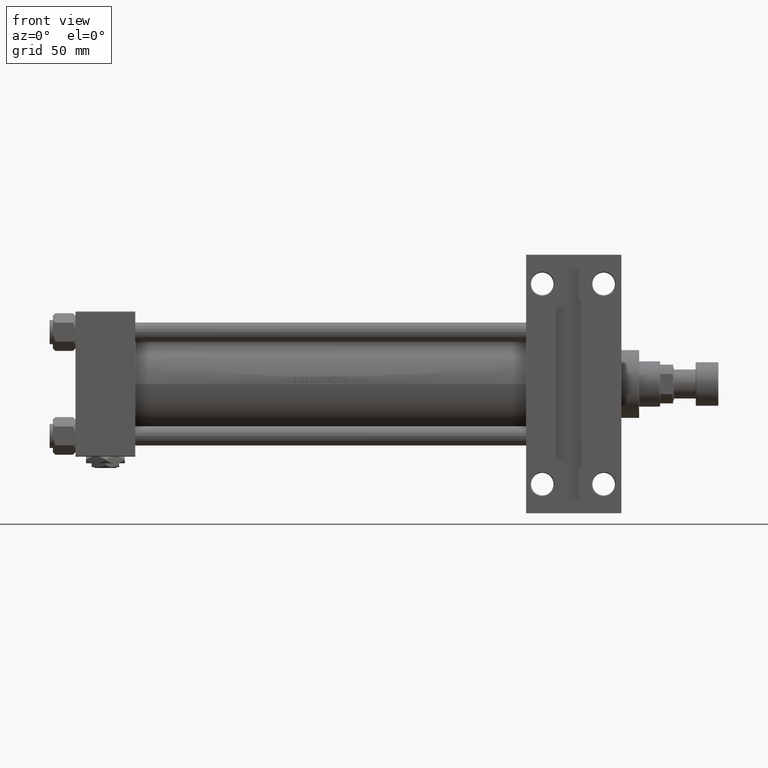
[diagram: clean part render]
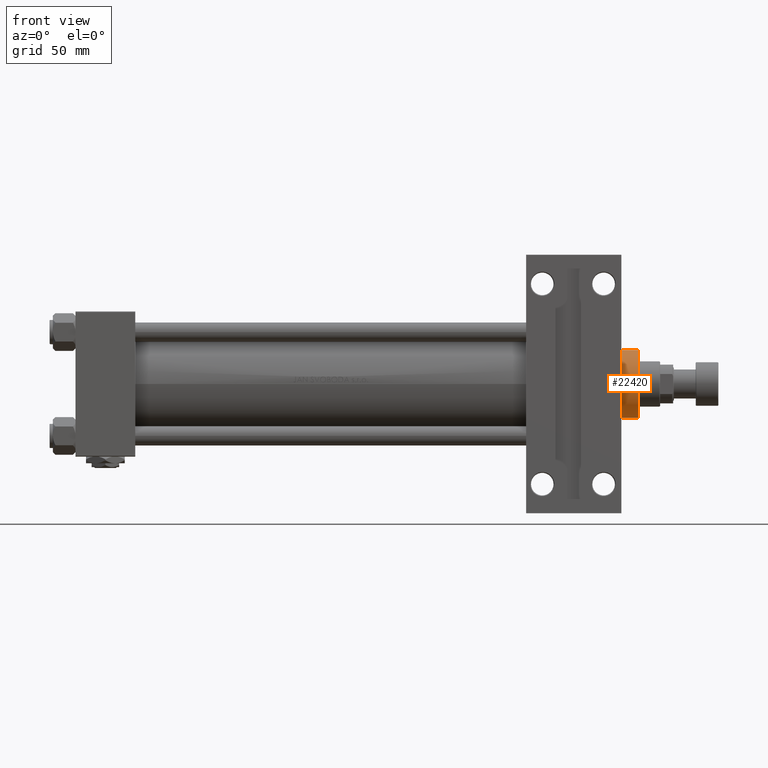
[diagram: same view with one face highlighted and labeled with its STEP entity id]
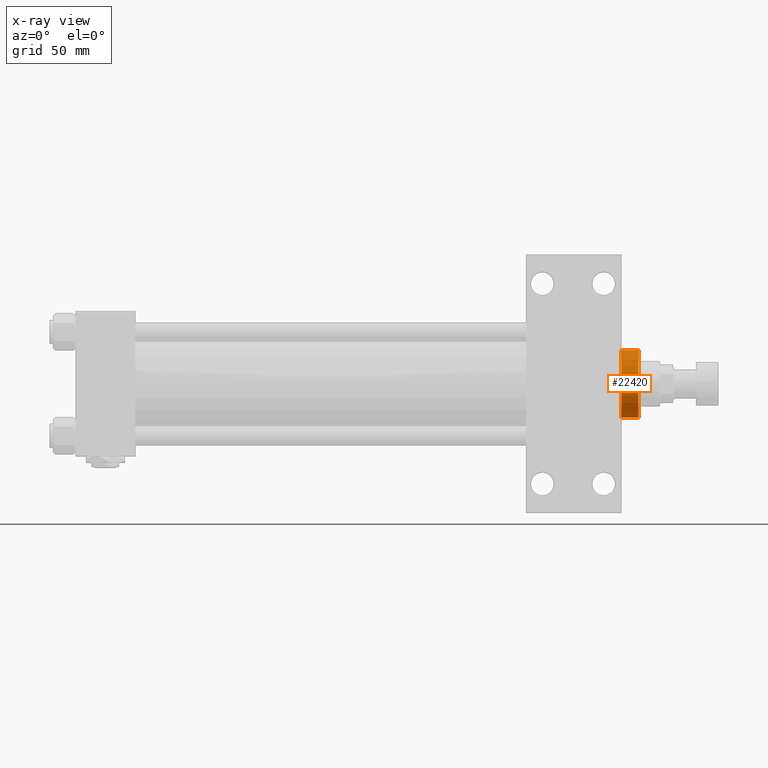
[diagram: x-ray of the same camera — body ghosted, the highlighted face saturated]
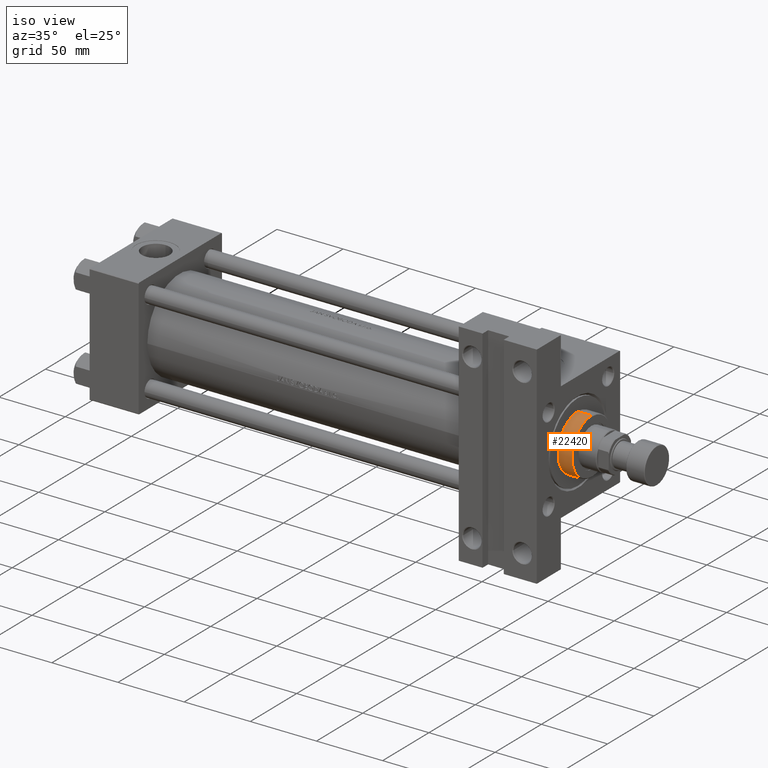
[diagram: same view with one face highlighted and labeled with its STEP entity id]
A machine part, front view. The second image highlights one B-rep face of the part: STEP entity #22420.
The next image is the same camera in x-ray: the body ghosted, the highlighted face saturated — about 0% of this face is hidden behind the body in this view.
A second angle (iso view) of the same face is appended — the face is thin or edge-on in the first view.
In plain terms, the highlighted cylindrical surface (edge-blend (fillet) strip) has radius 21 mm, axis along (-1, 0, 0).
Its self-contained STEP definition (entity closure, byte-faithful):
#4999 = LINE ( 'NONE', #35476, #31371 ) ;
#6871 = CIRCLE ( 'NONE', #36051, 21.00000000000000000 ) ;
#7412 = ORIENTED_EDGE ( 'NONE', *, *, #23226, .T. ) ;
#8286 = DIRECTION ( 'NONE',  ( -0.000000000000000000, -0.000000000000000000, -1.000000000000000000 ) ) ;
#10299 = ORIENTED_EDGE ( 'NONE', *, *, #29076, .T. ) ;
#10494 = EDGE_CURVE ( 'NONE', #45268, #15695, #36069, .T. ) ;
#11625 = CARTESIAN_POINT ( 'NONE',  ( -21.00000000000000000, 0.000000000000000000, 39.69999999999999574 ) ) ;
#12545 = AXIS2_PLACEMENT_3D ( 'NONE', #34574, #34318, #38892 ) ;
#14286 = DIRECTION ( 'NONE',  ( -0.000000000000000000, -0.000000000000000000, -1.000000000000000000 ) ) ;
#15349 = CARTESIAN_POINT ( 'NONE',  ( -21.00000000000000000, 0.000000000000000000, 39.19999999999999574 ) ) ;
#15695 = VERTEX_POINT ( 'NONE', #31958 ) ;
#19842 = AXIS2_PLACEMENT_3D ( 'NONE', #26710, #14286, #38141 ) ;
#20860 = CARTESIAN_POINT ( 'NONE',  ( 0.000000000000000000, 0.000000000000000000, 28.69999999999999929 ) ) ;
#21175 = CARTESIAN_POINT ( 'NONE',  ( 21.00000000000000000, 2.571758278209441661E-15, 28.69999999999999929 ) ) ;
#21353 = DIRECTION ( 'NONE',  ( 0.000000000000000000, 0.000000000000000000, 1.000000000000000000 ) ) ;
#22420 = ADVANCED_FACE ( 'NONE', ( #30504 ), #34068, .T. ) ;
#23226 = EDGE_CURVE ( 'NONE', #25081, #25346, #6871, .T. ) ;
#25081 = VERTEX_POINT ( 'NONE', #21175 ) ;
#25346 = VERTEX_POINT ( 'NONE', #47268 ) ;
#26710 = CARTESIAN_POINT ( 'NONE',  ( 0.000000000000000000, 0.000000000000000000, 39.69999999999999574 ) ) ;
#28111 = DIRECTION ( 'NONE',  ( -0.000000000000000000, -0.000000000000000000, -1.000000000000000000 ) ) ;
#28948 = DIRECTION ( 'NONE',  ( 1.000000000000000000, 0.000000000000000000, 0.000000000000000000 ) ) ;
#29076 = EDGE_CURVE ( 'NONE', #15695, #25081, #4999, .T. ) ;
#30504 = FACE_OUTER_BOUND ( 'NONE', #50067, .T. ) ;
#30848 = VECTOR ( 'NONE', #28111, 1000.000000000000000 ) ;
#31371 = VECTOR ( 'NONE', #8286, 1000.000000000000000 ) ;
#31958 = CARTESIAN_POINT ( 'NONE',  ( 21.00000000000000000, 2.571758278209441661E-15, 39.19999999999999574 ) ) ;
#34068 = CYLINDRICAL_SURFACE ( 'NONE', #19842, 21.00000000000000000 ) ;
#34318 = DIRECTION ( 'NONE',  ( 0.000000000000000000, 0.000000000000000000, -1.000000000000000000 ) ) ;
#34574 = CARTESIAN_POINT ( 'NONE',  ( 0.000000000000000000, 0.000000000000000000, 39.19999999999999574 ) ) ;
#35476 = CARTESIAN_POINT ( 'NONE',  ( 21.00000000000000000, 2.571758278209441661E-15, 39.69999999999999574 ) ) ;
#36051 = AXIS2_PLACEMENT_3D ( 'NONE', #20860, #21353, #28948 ) ;
#36069 = CIRCLE ( 'NONE', #12545, 21.00000000000000000 ) ;
#38141 = DIRECTION ( 'NONE',  ( -1.000000000000000000, 0.000000000000000000, 0.000000000000000000 ) ) ;
#38892 = DIRECTION ( 'NONE',  ( 1.000000000000000000, 0.000000000000000000, 0.000000000000000000 ) ) ;
#39784 = LINE ( 'NONE', #11625, #30848 ) ;
#40342 = EDGE_CURVE ( 'NONE', #45268, #25346, #39784, .T. ) ;
#43287 = ORIENTED_EDGE ( 'NONE', *, *, #10494, .T. ) ;
#45268 = VERTEX_POINT ( 'NONE', #15349 ) ;
#47268 = CARTESIAN_POINT ( 'NONE',  ( -21.00000000000000000, 0.000000000000000000, 28.69999999999999929 ) ) ;
#49711 = ORIENTED_EDGE ( 'NONE', *, *, #40342, .F. ) ;
#50067 = EDGE_LOOP ( 'NONE', ( #43287, #10299, #7412, #49711 ) ) ;